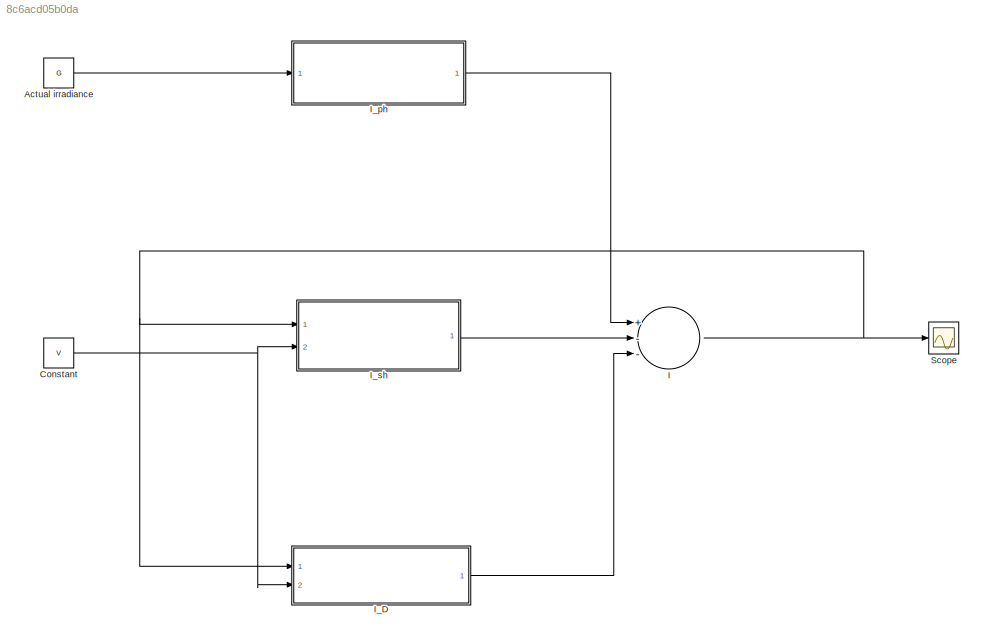
MODEL slx_8c6acd05b0da
KIND library
CONFIG AbsTol = auto
CONFIG EnableMultiTasking = off
CONFIG FixedStep = auto
CONFIG MaxStep = auto
CONFIG MinStep = auto
CONFIG RelTol = 1e-3
CONFIG SampleTimeConstraint = Unconstrained
CONFIG Solver = VariableStepAuto
CONFIG SolverName = VariableStepAuto
CONFIG StartTime = 0.0
CONFIG StopTime = 10.0
BLOCK [Constant] Actual irradiance
  Value = G
BLOCK [Constant] Constant
  Value = V
BLOCK [Sum] I
  InputSameDT = off
  Inputs = +--
  OutDataTypeStr = Inherit: Inherit via internal rule
  Ports = [3, 1]
  SaturateOnIntegerOverflow = off
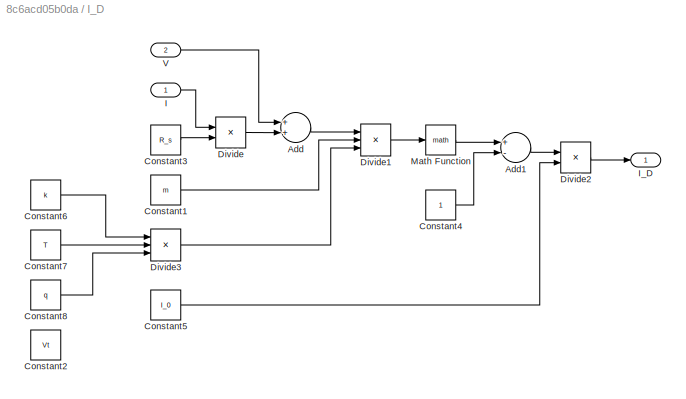
BLOCK [SubSystem] I_D
  Ports = [2, 1]
  RequestExecContextInheritance = off
BLOCK [Sum] I_D/Add
  InputSameDT = off
  OutDataTypeStr = Inherit: Inherit via internal rule
  Ports = [2, 1]
  SaturateOnIntegerOverflow = off
BLOCK [Sum] I_D/Add1
  InputSameDT = off
  Inputs = +-
  OutDataTypeStr = Inherit: Inherit via internal rule
  Ports = [2, 1]
  SaturateOnIntegerOverflow = off
BLOCK [Constant] I_D/Constant1
  Value = m
BLOCK [Constant] I_D/Constant2
  Value = Vt
BLOCK [Constant] I_D/Constant3
  Value = R_s
BLOCK [Constant] I_D/Constant4
BLOCK [Constant] I_D/Constant5
  Value = I_0
BLOCK [Constant] I_D/Constant6
  Value = k
BLOCK [Constant] I_D/Constant7
  Value = T
BLOCK [Constant] I_D/Constant8
  Value = q
BLOCK [Product] I_D/Divide
  InputSameDT = off
  Inputs = **
  OutDataTypeStr = Inherit: Inherit via internal rule
  Ports = [2, 1]
  RndMeth = Floor
  SaturateOnIntegerOverflow = off
BLOCK [Product] I_D/Divide1
  InputSameDT = off
  Inputs = *//
  OutDataTypeStr = Inherit: Inherit via internal rule
  Ports = [3, 1]
  RndMeth = Floor
  SaturateOnIntegerOverflow = off
BLOCK [Product] I_D/Divide2
  InputSameDT = off
  Inputs = **
  OutDataTypeStr = Inherit: Inherit via internal rule
  Ports = [2, 1]
  RndMeth = Floor
  SaturateOnIntegerOverflow = off
BLOCK [Product] I_D/Divide3
  InputSameDT = off
  Inputs = **/
  OutDataTypeStr = Inherit: Inherit via internal rule
  Ports = [3, 1]
  RndMeth = Floor
  SaturateOnIntegerOverflow = off
BLOCK [Inport] I_D/I
  IconDisplay = Port number
BLOCK [Outport] I_D/I_D
  IconDisplay = Port number
BLOCK [Math] I_D/Math Function
  Ports = [1, 1]
BLOCK [Inport] I_D/V
  IconDisplay = Port number
  Port = 2
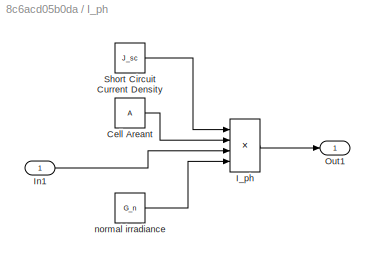
BLOCK [SubSystem] I_ph 
  Ports = [1, 1]
  RequestExecContextInheritance = off
BLOCK [Constant] I_ph /Cell Areant
  Value = A
BLOCK [Product] I_ph /I_ph
  InputSameDT = off
  Inputs = ***/
  OutDataTypeStr = Inherit: Inherit via internal rule
  Ports = [4, 1]
  RndMeth = Floor
  SaturateOnIntegerOverflow = off
BLOCK [Inport] I_ph /In1
  IconDisplay = Signal name
BLOCK [Outport] I_ph /Out1
  IconDisplay = Port number
BLOCK [Constant] I_ph /Short Circuit Current Density
  Value = J_sc
BLOCK [Constant] I_ph /normal irradiance
  Value = G_n
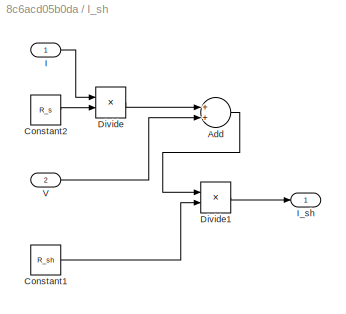
BLOCK [SubSystem] I_sh
  Ports = [2, 1]
  RequestExecContextInheritance = off
BLOCK [Sum] I_sh/Add
  InputSameDT = off
  OutDataTypeStr = Inherit: Inherit via internal rule
  Ports = [2, 1]
  SaturateOnIntegerOverflow = off
BLOCK [Constant] I_sh/Constant1
  Value = R_sh
BLOCK [Constant] I_sh/Constant2
  Value = R_s
BLOCK [Product] I_sh/Divide
  InputSameDT = off
  Inputs = **
  OutDataTypeStr = Inherit: Inherit via internal rule
  Ports = [2, 1]
  RndMeth = Floor
  SaturateOnIntegerOverflow = off
BLOCK [Product] I_sh/Divide1
  InputSameDT = off
  Inputs = */
  OutDataTypeStr = Inherit: Inherit via internal rule
  Ports = [2, 1]
  RndMeth = Floor
  SaturateOnIntegerOverflow = off
BLOCK [Inport] I_sh/I
  IconDisplay = Port number
BLOCK [Outport] I_sh/I_sh
  IconDisplay = Port number
BLOCK [Inport] I_sh/V
  IconDisplay = Port number
  Port = 2
BLOCK [Scope] Scope
  Floating = off
  NumInputPorts = 1
  Ports = [1]
  ScopeSpecificationString = Simulink.scopes.TimeScopeBlockCfg('CurrentConfiguration', extmgr.ConfigurationSet(extmgr.Configuration('Core','General UI',true),extmgr.Configuration('Core','Source UI',true),extmgr.Configuration('Sources','WiredSimulink',true),extmgr.Configuration('Visuals','Time Domain',true,'SerializedDisplays',{struct('MinYLimReal','-10','MaxYLimReal','10','YLabelReal','','MinYLimMag','0','MaxYLimMag','10','Le...<+1305ch>
LINE Actual irradiance:1 -> I_ph :1
NET Constant:1 -> I_D:2, I_sh:2
NET I:1 -> I_D:1, I_sh:1, Scope:1
LINE I_D/Add1:1 -> I_D/Divide2:1
LINE I_D/Add:1 -> I_D/Divide1:1
LINE I_D/Constant1:1 -> I_D/Divide1:2
LINE I_D/Constant3:1 -> I_D/Divide:2
LINE I_D/Constant4:1 -> I_D/Add1:2
LINE I_D/Constant5:1 -> I_D/Divide2:2
LINE I_D/Constant6:1 -> I_D/Divide3:1
LINE I_D/Constant7:1 -> I_D/Divide3:2
LINE I_D/Constant8:1 -> I_D/Divide3:3
LINE I_D/Divide1:1 -> I_D/Math Function:1
LINE I_D/Divide2:1 -> I_D/I_D:1
LINE I_D/Divide3:1 -> I_D/Divide1:3
LINE I_D/Divide:1 -> I_D/Add:2
LINE I_D/I:1 -> I_D/Divide:1
LINE I_D/Math Function:1 -> I_D/Add1:1
LINE I_D/V:1 -> I_D/Add:1
LINE I_D:1 -> I:3
LINE I_ph /Cell Areant:1 -> I_ph /I_ph:2
LINE I_ph /I_ph:1 -> I_ph /Out1:1
LINE I_ph /In1:1 -> I_ph /I_ph:3
LINE I_ph /Short Circuit Current Density:1 -> I_ph /I_ph:1
LINE I_ph /normal irradiance:1 -> I_ph /I_ph:4
LINE I_ph :1 -> I:1
LINE I_sh/Add:1 -> I_sh/Divide1:1
LINE I_sh/Constant1:1 -> I_sh/Divide1:2
LINE I_sh/Constant2:1 -> I_sh/Divide:2
LINE I_sh/Divide1:1 -> I_sh/I_sh:1
LINE I_sh/Divide:1 -> I_sh/Add:1
LINE I_sh/I:1 -> I_sh/Divide:1
LINE I_sh/V:1 -> I_sh/Add:2
LINE I_sh:1 -> I:2
note: NET lines group one-source signal fan-out (src -> all destinations, sorted); 1:1 wires keep LINE
